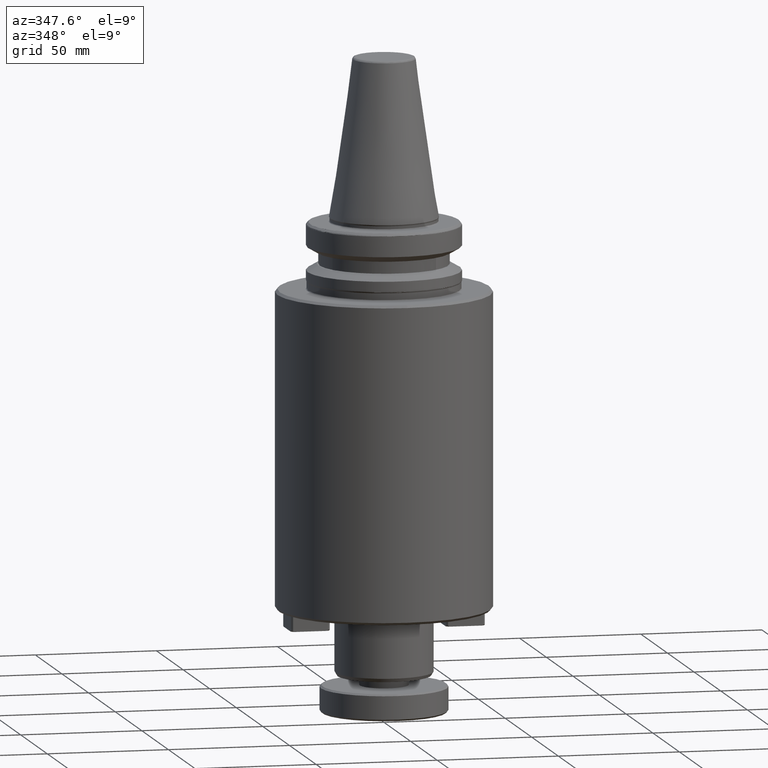
[diagram: clean part render]
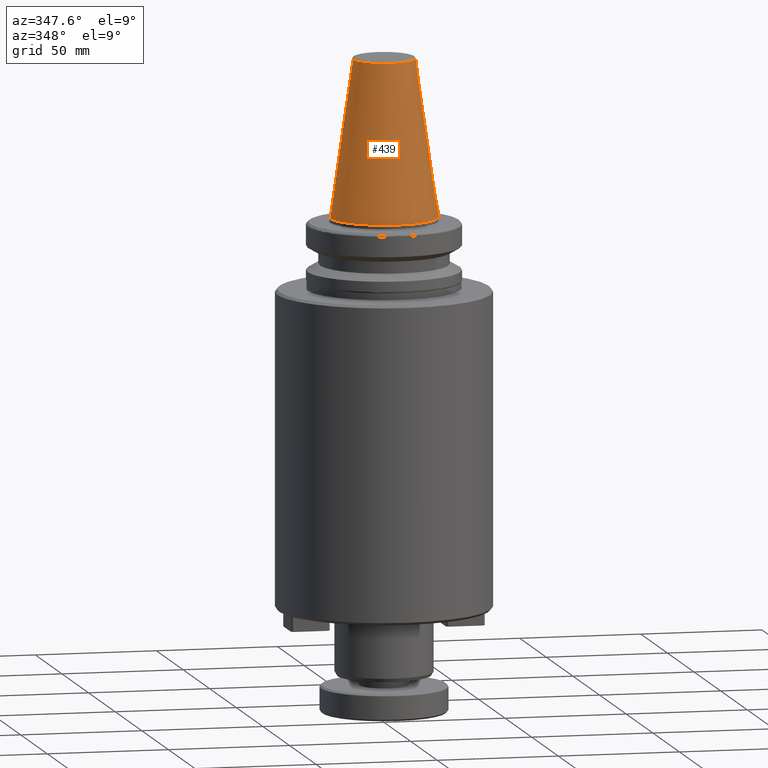
[diagram: same view with one face highlighted and labeled with its STEP entity id]
A machine part, auxiliary view. The second image highlights one B-rep face of the part: STEP entity #439.
In plain terms, the highlighted conical surface has half-angle 8.297 deg.
Its self-contained STEP definition (entity closure, byte-faithful):
#167 = VERTEX_POINT ( 'NONE', #1033 ) ;
#216 = DIRECTION ( 'NONE',  ( 0.1443082272673070200, 1.767266086135363300E-017, -0.9895327864921743500 ) ) ;
#383 = VERTEX_POINT ( 'NONE', #661 ) ;
#439 = ADVANCED_FACE ( 'NONE', ( #3551 ), #1196, .T. ) ;
#470 = CARTESIAN_POINT ( 'NONE',  ( 0.0000000000000000000, 0.0000000000000000000, 64.54430822726730800 ) ) ;
#658 = EDGE_CURVE ( 'NONE', #770, #167, #3012, .T. ) ;
#661 = CARTESIAN_POINT ( 'NONE',  ( 12.81219950706225000, 2.145409711370550300E-015, 64.54430822726730800 ) ) ;
#733 = CARTESIAN_POINT ( 'NONE',  ( 0.0000000000000000000, 0.0000000000000000000, -2.775557561562891400E-014 ) ) ;
#770 = VERTEX_POINT ( 'NONE', #1453 ) ;
#1033 = CARTESIAN_POINT ( 'NONE',  ( -22.22500000000000100, 0.0000000000000000000, 0.0000000000000000000 ) ) ;
#1196 = CONICAL_SURFACE ( 'NONE', #1407, 22.22500000000000500, 0.1448138465474190200 ) ;
#1244 = LINE ( 'NONE', #2727, #2708 ) ;
#1407 = AXIS2_PLACEMENT_3D ( 'NONE', #733, #2693, #1624 ) ;
#1453 = CARTESIAN_POINT ( 'NONE',  ( -12.81219950706225000, 0.0000000000000000000, 64.54430822726730800 ) ) ;
#1476 = ORIENTED_EDGE ( 'NONE', *, *, #1777, .F. ) ;
#1479 = ORIENTED_EDGE ( 'NONE', *, *, #3453, .F. ) ;
#1624 = DIRECTION ( 'NONE',  ( -1.000000000000000000, 0.0000000000000000000, 0.0000000000000000000 ) ) ;
#1629 = EDGE_LOOP ( 'NONE', ( #1479, #2435, #3217, #1476 ) ) ;
#1646 = AXIS2_PLACEMENT_3D ( 'NONE', #3177, #3173, #3172 ) ;
#1679 = EDGE_CURVE ( 'NONE', #383, #770, #3023, .T. ) ;
#1719 = VERTEX_POINT ( 'NONE', #2493 ) ;
#1722 = CARTESIAN_POINT ( 'NONE',  ( -22.22500000000000500, 0.0000000000000000000, -2.775557561562891400E-014 ) ) ;
#1777 = EDGE_CURVE ( 'NONE', #1719, #167, #3510, .T. ) ;
#1845 = AXIS2_PLACEMENT_3D ( 'NONE', #470, #2248, #2168 ) ;
#2168 = DIRECTION ( 'NONE',  ( -1.000000000000000000, 0.0000000000000000000, 0.0000000000000000000 ) ) ;
#2248 = DIRECTION ( 'NONE',  ( 0.0000000000000000000, 0.0000000000000000000, -1.000000000000000000 ) ) ;
#2435 = ORIENTED_EDGE ( 'NONE', *, *, #1679, .T. ) ;
#2493 = CARTESIAN_POINT ( 'NONE',  ( 22.22500000000000100, 2.721777511104992800E-015, 0.0000000000000000000 ) ) ;
#2654 = DIRECTION ( 'NONE',  ( -0.1443082272673070200, 0.0000000000000000000, -0.9895327864921743500 ) ) ;
#2693 = DIRECTION ( 'NONE',  ( 0.0000000000000000000, 0.0000000000000000000, -1.000000000000000000 ) ) ;
#2708 = VECTOR ( 'NONE', #216, 1000.000000000000000 ) ;
#2727 = CARTESIAN_POINT ( 'NONE',  ( 22.22500000000000500, 2.721777511104993200E-015, -2.775557561562891400E-014 ) ) ;
#3012 = LINE ( 'NONE', #1722, #3264 ) ;
#3023 = CIRCLE ( 'NONE', #1845, 12.81219950706225000 ) ;
#3172 = DIRECTION ( 'NONE',  ( 1.000000000000000000, 0.0000000000000000000, 9.822541477422708000E-017 ) ) ;
#3173 = DIRECTION ( 'NONE',  ( -0.0000000000000000000, -0.0000000000000000000, -1.000000000000000000 ) ) ;
#3177 = CARTESIAN_POINT ( 'NONE',  ( 0.0000000000000000000, 0.0000000000000000000, 0.0000000000000000000 ) ) ;
#3217 = ORIENTED_EDGE ( 'NONE', *, *, #658, .T. ) ;
#3264 = VECTOR ( 'NONE', #2654, 1000.000000000000000 ) ;
#3453 = EDGE_CURVE ( 'NONE', #383, #1719, #1244, .T. ) ;
#3510 = CIRCLE ( 'NONE', #1646, 22.22500000000000500 ) ;
#3551 = FACE_OUTER_BOUND ( 'NONE', #1629, .T. ) ;